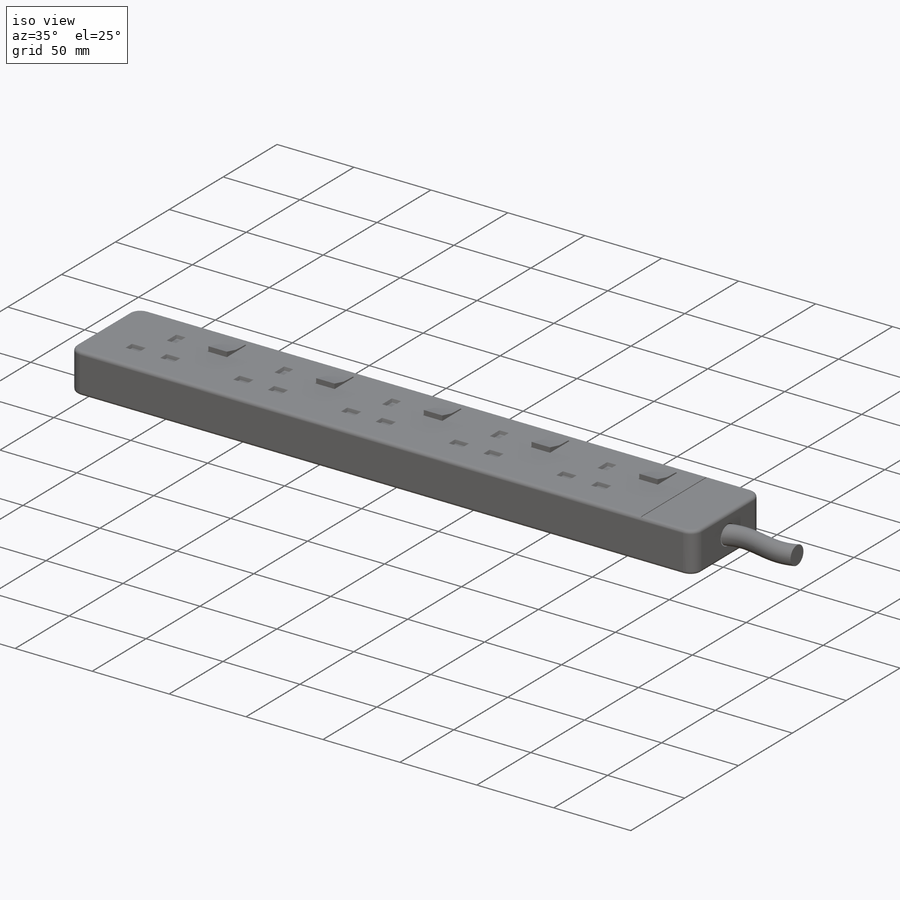
[diagram: iso view]
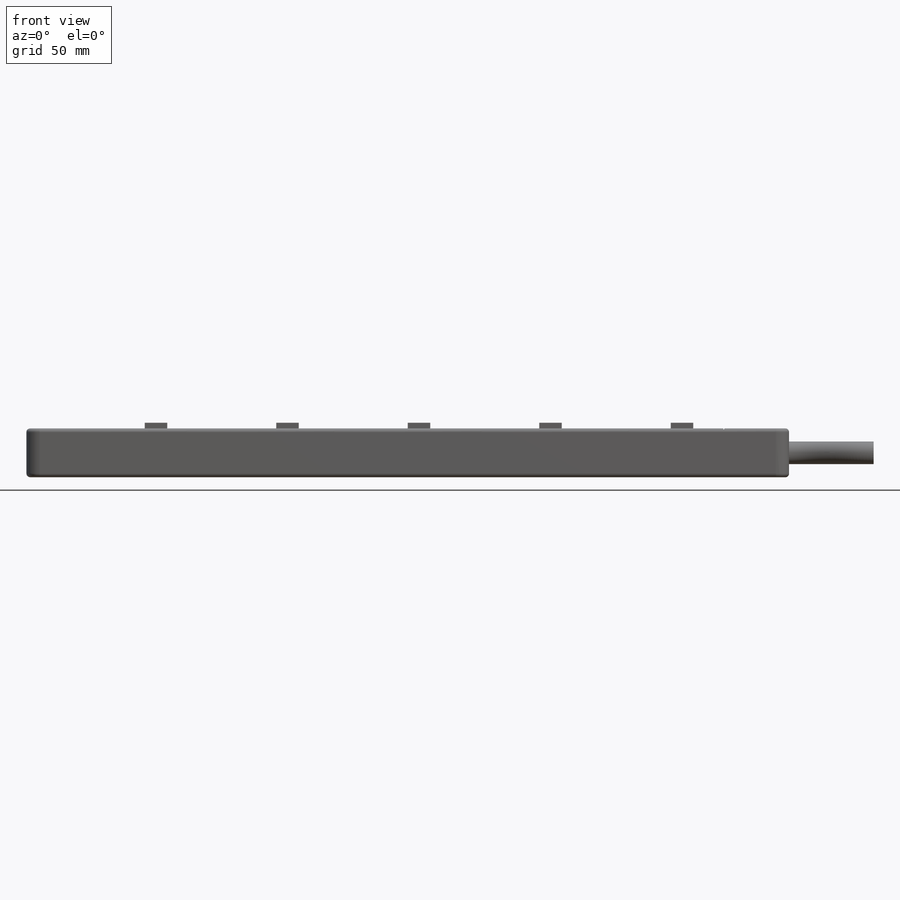
[diagram: front view]
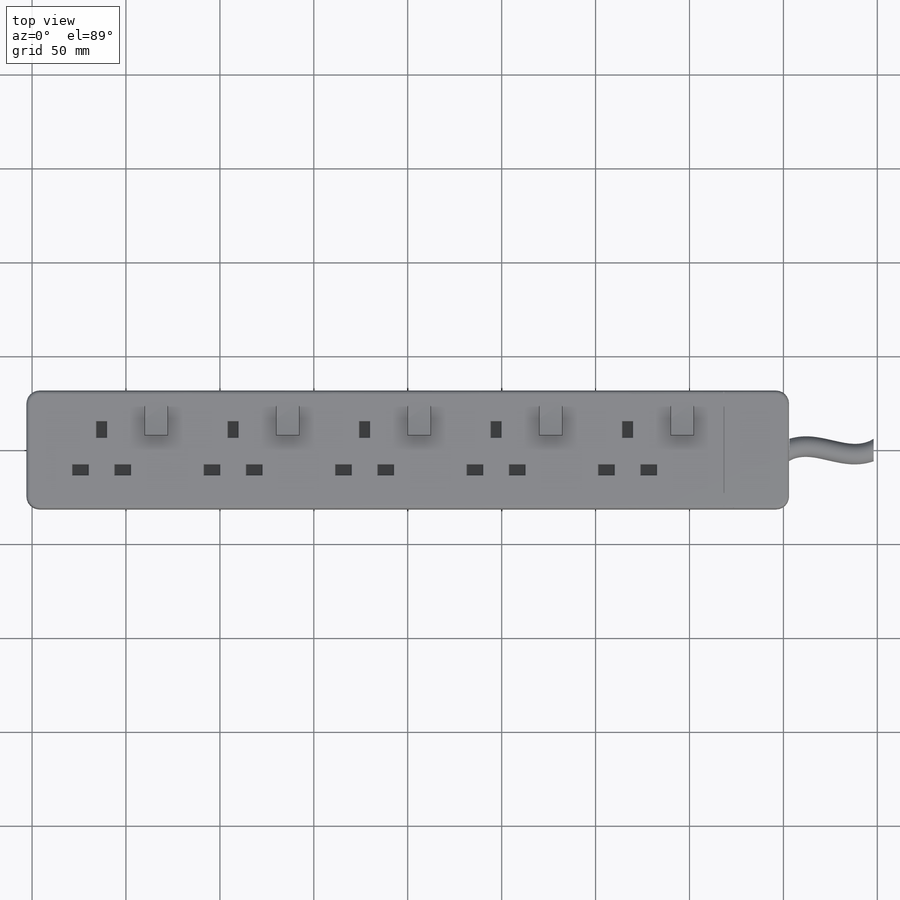
[diagram: top view]
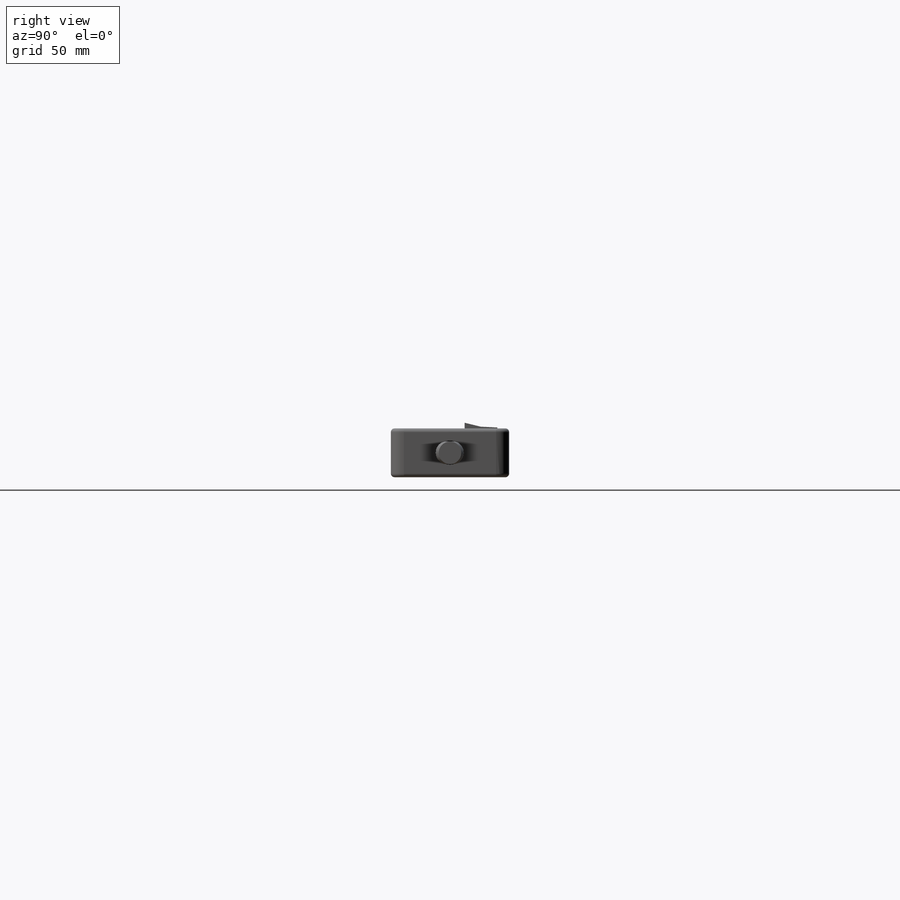
[diagram: right view]
SOLIDWORKS PART (.sldprt)
format: sldprt  version: not decoded by parser v0  size: 1,289,728 bytes
history: native  units: mm
features: sketch x8, cut_extrude x4, extrude x2, plane x2, material x1, pattern_linear x1, fillet x1, sweep x1 (+12 scaffold rows collapsed)
feature tree (32):
  scaffold x12  (default folders/planes/origin — collapsed)
  material  "Nylon 101"
  sketch  "Sketch1"  dims[D3=7.0mm D1=264.0mm D2=63.0mm]
  extrude  "Boss-Extrude1"  Depth=26mm
  sketch  "Sketch2"  dims[D1=9.0mm D2=9.0mm D3=6.0mm D4=6.0mm D5=13.5mm D6=9.0mm D7=6.0mm D8=14.0mm D9=40.0mm]
  cut_extrude  "Cut-Extrude1"  Depth=2mm
  sketch  "Sketch3"  dims[D1=12.5mm D2=18.0mm D3=7.0mm D4=6.0mm]
  cut_extrude  "Cut-Extrude2"  Depth=2mm
  plane  "Plane1"
  sketch  "Sketch5"  dims[D1=0.3mm D2=0.3mm D3=2.5mm D4=5.0mm]
  extrude  "Boss-Extrude3"  Depth=12mm
  pattern_linear  "LPattern2"  Count1=3 Count2=1 Spacing1=70mm Spacing2=10mm
  sketch  "Sketch6"  dims[D1=13.0mm]
  cut_extrude  "Cut-Extrude3"  Depth=12mm
  sketch  "Sketch7"  dims[D1=35.0mm D2=0.5mm]
  cut_extrude  "Cut-Extrude4"  Depth=0.5mm
  fillet  "Fillet1"  Radius=2mm
  sketch  "Sketch8"  dims[D1=45.0mm D2=~12.05104mm D3=~21.174386mm D4=~29.911547mm D5=31.5mm D6=31.5mm]
  plane  "Plane2"  Offset=45mm
  sketch  "Sketch9"  dims[D1=12.0mm]
  sweep  "Sweep1"
decode coverage: 16 of 17 modeling features carry decoded parameters
note: ~ marks probable driven/reference dimensions
note: suppression state not decoded; provenance and decode notes live in map.json
